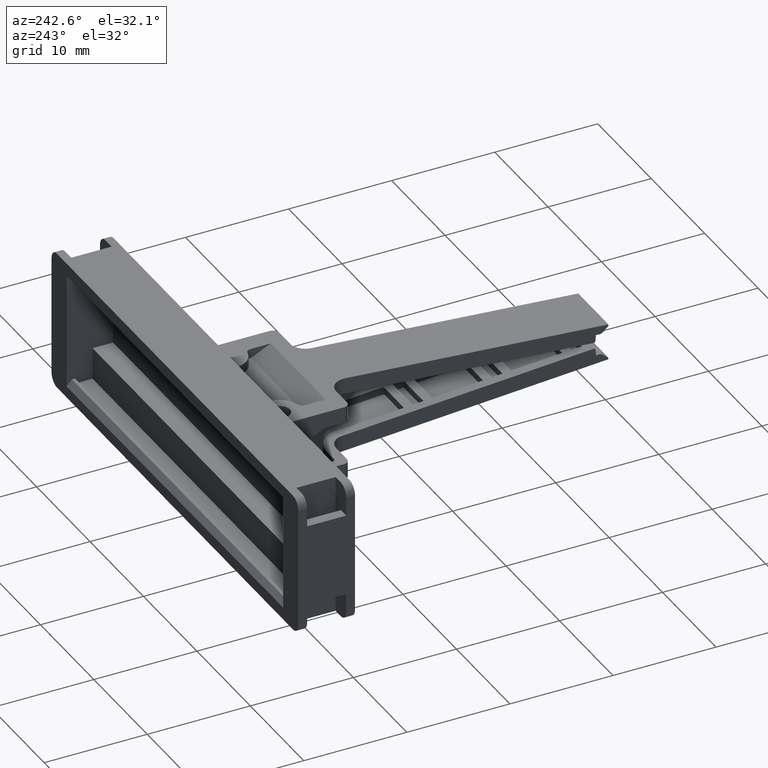
[diagram: clean part render]
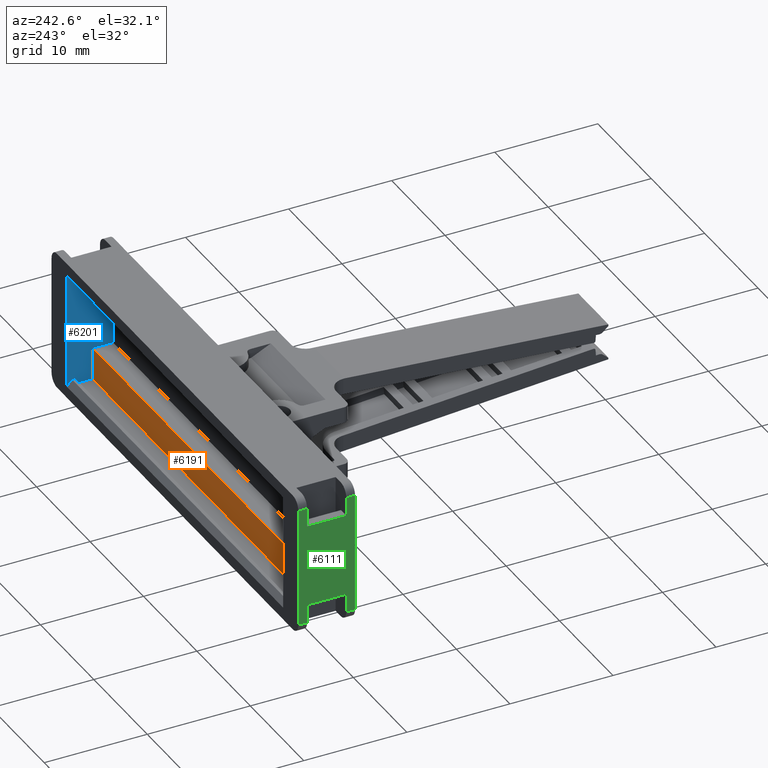
[diagram: same view with three faces highlighted in distinct colors, each labeled with its STEP entity id]
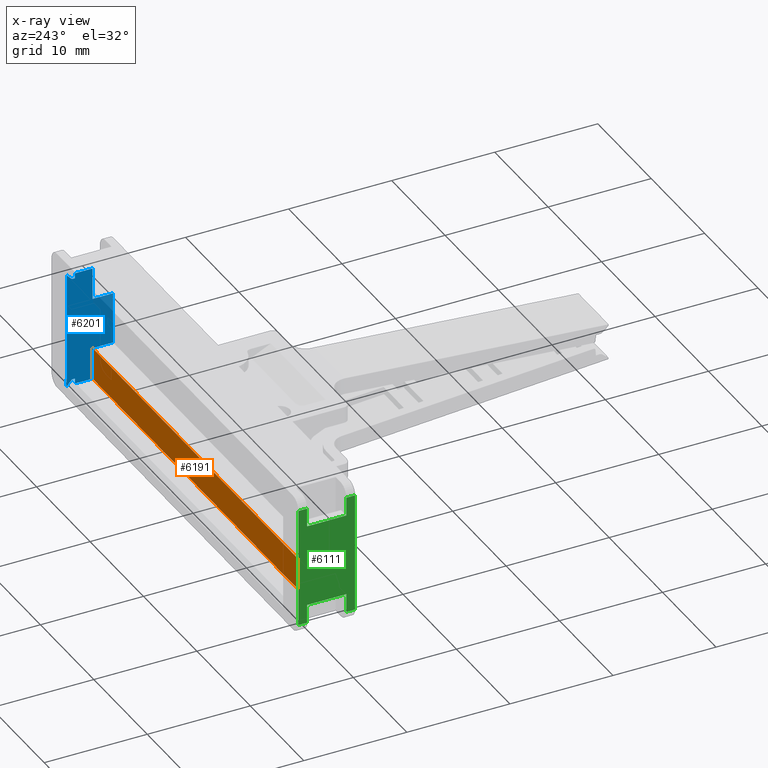
[diagram: x-ray of the same camera — body ghosted, the three highlighted faces saturated]
A machine part, auxiliary view with three faces highlighted in distinct colors.
The next image is the same camera in x-ray (body ghosted, the three faces saturated) — at least one of them is partly hidden behind the body in this view.
Their STEP definitions:

[orange] entity #6191 — the highlighted planar face has unit normal (0, 1, -0).
#557 = FACE_OUTER_BOUND ( 'NONE', #4956, .T. ) ;
#588 = PLANE ( 'NONE',  #7353 ) ;
#590 = CARTESIAN_POINT ( 'NONE',  ( -419.6897411092647300, 149.2340583950820900, 12.57606308538600900 ) ) ;
#603 = DIRECTION ( 'NONE',  ( 2.742953361444780200E-007, 0.9999999999999623600, -0.0000000000000000000 ) ) ;
#604 = DIRECTION ( 'NONE',  ( -0.9999999999999623600, 2.742953361444780200E-007, 0.0000000000000000000 ) ) ;
#1152 = CARTESIAN_POINT ( 'NONE',  ( -419.6897416578551100, 149.2340583950822600, 12.57606308538600900 ) ) ;
#1192 = CARTESIAN_POINT ( 'NONE',  ( -460.1897416578522100, 149.2340695040433300, 12.57606308538600900 ) ) ;
#2229 = CARTESIAN_POINT ( 'NONE',  ( -460.1897416578523200, 149.2340695040433300, 9.476063085386011100 ) ) ;
#2310 = CARTESIAN_POINT ( 'NONE',  ( -419.6897416578556200, 149.2340583950822600, 9.476063085386011100 ) ) ;
#3043 = DIRECTION ( 'NONE',  ( -0.0000000000000000000, -0.0000000000000000000, -1.000000000000000000 ) ) ;
#3049 = LINE ( 'NONE', #3057, #7735 ) ;
#3054 = DIRECTION ( 'NONE',  ( 0.9999999999999623600, -2.742953354163218600E-007, 0.0000000000000000000 ) ) ;
#3057 = CARTESIAN_POINT ( 'NONE',  ( -419.6897416578551700, 149.2340583950822600, 21.57606308538600700 ) ) ;
#3070 = LINE ( 'NONE', #3076, #7718 ) ;
#3076 = CARTESIAN_POINT ( 'NONE',  ( -460.1897416578522100, 149.2340695040433300, 12.57606308538600900 ) ) ;
#3108 = LINE ( 'NONE', #3126, #6973 ) ;
#3126 = CARTESIAN_POINT ( 'NONE',  ( -460.1897416578523200, 149.2340695040433300, 21.57606308538600700 ) ) ;
#3128 = DIRECTION ( 'NONE',  ( 0.0000000000000000000, 0.0000000000000000000, 1.000000000000000000 ) ) ;
#4956 = EDGE_LOOP ( 'NONE', ( #5460, #5270, #5526, #5444 ) ) ;
#5044 = CARTESIAN_POINT ( 'NONE',  ( -419.6897411092647300, 149.2340583950820900, 9.476063085386009300 ) ) ;
#5057 = DIRECTION ( 'NONE',  ( -0.9999999999999623600, 2.742953361444780200E-007, 0.0000000000000000000 ) ) ;
#5117 = LINE ( 'NONE', #5044, #7607 ) ;
#5270 = ORIENTED_EDGE ( 'NONE', *, *, #6593, .T. ) ;
#5444 = ORIENTED_EDGE ( 'NONE', *, *, #6608, .T. ) ;
#5460 = ORIENTED_EDGE ( 'NONE', *, *, #6590, .T. ) ;
#5526 = ORIENTED_EDGE ( 'NONE', *, *, #6455, .T. ) ;
#5875 = VERTEX_POINT ( 'NONE', #2229 ) ;
#5950 = VERTEX_POINT ( 'NONE', #2310 ) ;
#5987 = VERTEX_POINT ( 'NONE', #1192 ) ;
#6003 = VERTEX_POINT ( 'NONE', #1152 ) ;
#6191 = ADVANCED_FACE ( 'NONE', ( #557 ), #588, .T. ) ;
#6455 = EDGE_CURVE ( 'NONE', #5950, #5875, #5117, .T. ) ;
#6590 = EDGE_CURVE ( 'NONE', #5987, #6003, #3070, .T. ) ;
#6593 = EDGE_CURVE ( 'NONE', #6003, #5950, #3049, .T. ) ;
#6608 = EDGE_CURVE ( 'NONE', #5875, #5987, #3108, .T. ) ;
#6973 = VECTOR ( 'NONE', #3128, 1000.000000000000000 ) ;
#7353 = AXIS2_PLACEMENT_3D ( 'NONE', #590, #603, #604 ) ;
#7607 = VECTOR ( 'NONE', #5057, 1000.000000000000100 ) ;
#7718 = VECTOR ( 'NONE', #3054, 1000.000000000000100 ) ;
#7735 = VECTOR ( 'NONE', #3043, 1000.000000000000000 ) ;

[blue] entity #6201 — the highlighted planar face has unit normal (1, 0, -0).
#38 = CARTESIAN_POINT ( 'NONE',  ( -419.6897416595813900, 151.7340548927066700, 10.41417284747742900 ) ) ;
#625 = FACE_OUTER_BOUND ( 'NONE', #4955, .T. ) ;
#632 = PLANE ( 'NONE',  #7363 ) ;
#633 = DIRECTION ( 'NONE',  ( 1.000000000000000000, 4.966796887890610000E-013, -0.0000000000000000000 ) ) ;
#646 = DIRECTION ( 'NONE',  ( -4.966796887890610000E-013, 1.000000000000000000, 0.0000000000000000000 ) ) ;
#661 = CARTESIAN_POINT ( 'NONE',  ( -419.6897416578563000, 151.6340546778022300, 21.57606308538600700 ) ) ;
#1152 = CARTESIAN_POINT ( 'NONE',  ( -419.6897416578551100, 149.2340583950822600, 12.57606308538600900 ) ) ;
#1163 = CARTESIAN_POINT ( 'NONE',  ( -419.6897416578546000, 147.2340583906099600, 12.57606308538600500 ) ) ;
#1172 = CARTESIAN_POINT ( 'NONE',  ( -419.6897416578543100, 147.2340583870322100, 17.57606308538600700 ) ) ;
#1188 = CARTESIAN_POINT ( 'NONE',  ( -419.6897416584290600, 151.7340599909095400, 20.67606166276161200 ) ) ;
#1201 = CARTESIAN_POINT ( 'NONE',  ( -419.6897416578549400, 149.2340583950822600, 17.57606308538600700 ) ) ;
#2165 = CARTESIAN_POINT ( 'NONE',  ( -419.6897416578560200, 151.2340652587027100, 20.17606308537966700 ) ) ;
#2178 = CARTESIAN_POINT ( 'NONE',  ( -419.6897416578561300, 150.9340649173834400, 9.476063085386011100 ) ) ;
#2180 = CARTESIAN_POINT ( 'NONE',  ( -419.6897416555415800, 151.7638577032451200, 9.413707105230278300 ) ) ;
#2185 = CARTESIAN_POINT ( 'NONE',  ( -419.6897416578562500, 150.9340649173867100, 9.976063085385108700 ) ) ;
#2189 = CARTESIAN_POINT ( 'NONE',  ( -419.6897416578556800, 150.9340649173904900, 20.67606308538600500 ) ) ;
#2197 = CARTESIAN_POINT ( 'NONE',  ( -419.6897416578558500, 150.9340649173766700, 20.17606308538491800 ) ) ;
#2260 = CARTESIAN_POINT ( 'NONE',  ( -419.6897416572152800, 151.2340652587038200, 9.976063085386865500 ) ) ;
#2281 = CARTESIAN_POINT ( 'NONE',  ( -419.6897416578551100, 149.2340583950822600, 20.67606308538600500 ) ) ;
#2310 = CARTESIAN_POINT ( 'NONE',  ( -419.6897416578556200, 149.2340583950822600, 9.476063085386011100 ) ) ;
#2421 = ORIENTED_EDGE ( 'NONE', *, *, #6365, .T. ) ;
#2428 = ORIENTED_EDGE ( 'NONE', *, *, #6614, .F. ) ;
#2448 = ORIENTED_EDGE ( 'NONE', *, *, #6692, .F. ) ;
#2475 = ORIENTED_EDGE ( 'NONE', *, *, #6426, .T. ) ;
#2483 = ORIENTED_EDGE ( 'NONE', *, *, #6677, .F. ) ;
#2484 = ORIENTED_EDGE ( 'NONE', *, *, #6461, .T. ) ;
#2488 = ORIENTED_EDGE ( 'NONE', *, *, #6593, .F. ) ;
#2493 = ORIENTED_EDGE ( 'NONE', *, *, #6430, .T. ) ;
#2494 = ORIENTED_EDGE ( 'NONE', *, *, #6666, .F. ) ;
#2496 = ORIENTED_EDGE ( 'NONE', *, *, #6603, .F. ) ;
#2502 = ORIENTED_EDGE ( 'NONE', *, *, #6372, .T. ) ;
#2519 = ORIENTED_EDGE ( 'NONE', *, *, #6622, .F. ) ;
#2523 = ORIENTED_EDGE ( 'NONE', *, *, #6403, .F. ) ;
#2531 = ORIENTED_EDGE ( 'NONE', *, *, #6584, .F. ) ;
#2540 = ORIENTED_EDGE ( 'NONE', *, *, #6466, .T. ) ;
#3000 = LINE ( 'NONE', #3007, #7732 ) ;
#3007 = CARTESIAN_POINT ( 'NONE',  ( -419.6897416578541400, 147.2340583843488800, 21.57606308538600700 ) ) ;
#3009 = DIRECTION ( 'NONE',  ( -0.0000000000000000000, -0.0000000000000000000, -1.000000000000000000 ) ) ;
#3043 = DIRECTION ( 'NONE',  ( -0.0000000000000000000, -0.0000000000000000000, -1.000000000000000000 ) ) ;
#3049 = LINE ( 'NONE', #3057, #7735 ) ;
#3057 = CARTESIAN_POINT ( 'NONE',  ( -419.6897416578551700, 149.2340583950822600, 21.57606308538600700 ) ) ;
#3088 = LINE ( 'NONE', #3121, #6949 ) ;
#3091 = DIRECTION ( 'NONE',  ( 3.925261081698462900E-013, -0.7071040438082220000, -0.7071095185542760600 ) ) ;
#3096 = CARTESIAN_POINT ( 'NONE',  ( -419.6897416578551700, 149.2340583950822600, 21.57606308538600700 ) ) ;
#3113 = LINE ( 'NONE', #3096, #7690 ) ;
#3114 = DIRECTION ( 'NONE',  ( -0.0000000000000000000, -0.0000000000000000000, -1.000000000000000000 ) ) ;
#3121 = CARTESIAN_POINT ( 'NONE',  ( -419.6897416578563600, 151.7340595099788300, 20.67606120785361400 ) ) ;
#3155 = CARTESIAN_POINT ( 'NONE',  ( -419.6897416578563000, 151.6340546778022300, 12.57606308538600500 ) ) ;
#3158 = DIRECTION ( 'NONE',  ( -4.966796887890610000E-013, 1.000000000000000000, 0.0000000000000000000 ) ) ;
#3176 = LINE ( 'NONE', #3155, #6965 ) ;
#3351 = LINE ( 'NONE', #3352, #6957 ) ;
#3352 = CARTESIAN_POINT ( 'NONE',  ( -419.6897416613063600, 151.7340548927066700, 22.37606308538600400 ) ) ;
#3353 = DIRECTION ( 'NONE',  ( 0.0000000000000000000, 0.0000000000000000000, 1.000000000000000000 ) ) ;
#3411 = CARTESIAN_POINT ( 'NONE',  ( -419.6897416578563000, 151.6340546778022300, 17.57606308538600700 ) ) ;
#3430 = DIRECTION ( 'NONE',  ( 4.966796887890610000E-013, -1.000000000000000000, -0.0000000000000000000 ) ) ;
#3431 = LINE ( 'NONE', #3411, #6958 ) ;
#3463 = CARTESIAN_POINT ( 'NONE',  ( -419.6897416595813900, 151.7340548927066700, 10.41417284747742900 ) ) ;
#3513 = CARTESIAN_POINT ( 'NONE',  ( -419.6897416584290600, 151.7340599909095400, 20.67606166276161200 ) ) ;
#3525 = CARTESIAN_POINT ( 'NONE',  ( -419.6897416613063600, 151.7340548927066700, 17.25543175439488800 ) ) ;
#3545 = CARTESIAN_POINT ( 'NONE',  ( -419.6897416613063600, 151.7340548927066700, 13.83480230093615800 ) ) ;
#4092 = B_SPLINE_CURVE_WITH_KNOTS ( 'NONE', 3,
 ( #4607, #4621, #4789, #4734 ),
 .UNSPECIFIED., .F., .F.,
 ( 4, 4 ),
 ( 0.0000000000000000000, 1.000000000000000000 ),
 .UNSPECIFIED. ) ;
#4101 = B_SPLINE_CURVE_WITH_KNOTS ( 'NONE', 3,
 ( #3463, #3545, #3525, #3513 ),
 .UNSPECIFIED., .F., .F.,
 ( 4, 4 ),
 ( 0.08981549320884404900, 1.000000000000000000 ),
 .UNSPECIFIED. ) ;
#4515 = CARTESIAN_POINT ( 'NONE',  ( -419.6897416578563000, 151.2340652587133400, 9.976063085386011100 ) ) ;
#4526 = DIRECTION ( 'NONE',  ( -0.0000000000000000000, -1.000000000000000000, -0.0000000000000000000 ) ) ;
#4536 = LINE ( 'NONE', #4515, #7526 ) ;
#4568 = CARTESIAN_POINT ( 'NONE',  ( -419.6897416578556800, 150.9340649173929300, 20.17606308538600500 ) ) ;
#4571 = DIRECTION ( 'NONE',  ( -0.0000000000000000000, -0.0000000000000000000, -1.000000000000000000 ) ) ;
#4587 = LINE ( 'NONE', #4568, #7561 ) ;
#4607 = CARTESIAN_POINT ( 'NONE',  ( -419.6897416572152800, 151.2340652587038200, 9.976063085386865500 ) ) ;
#4621 = CARTESIAN_POINT ( 'NONE',  ( -419.6897416561471300, 151.4165505771551600, 9.793577766942604500 ) ) ;
#4734 = CARTESIAN_POINT ( 'NONE',  ( -419.6897416555415800, 151.7638577032451200, 9.413707105230278300 ) ) ;
#4789 = CARTESIAN_POINT ( 'NONE',  ( -419.6897416561471300, 151.5990358956020400, 9.611092448495771400 ) ) ;
#4908 = LINE ( 'NONE', #4922, #7616 ) ;
#4922 = CARTESIAN_POINT ( 'NONE',  ( -419.6897416578561300, 150.9340649173944400, 9.476063085386011100 ) ) ;
#4925 = DIRECTION ( 'NONE',  ( -0.0000000000000000000, -1.000000000000000000, -0.0000000000000000000 ) ) ;
#4955 = EDGE_LOOP ( 'NONE', ( #2493, #2475, #2488, #2519, #2531, #2483, #2496, #2540, #2502, #2484, #2428, #2448, #2494, #2523, #2421 ) ) ;
#4967 = CARTESIAN_POINT ( 'NONE',  ( -419.6897416578561900, 150.9340649173929300, 9.976063085386011100 ) ) ;
#4980 = LINE ( 'NONE', #4967, #7578 ) ;
#5006 = DIRECTION ( 'NONE',  ( -0.0000000000000000000, -0.0000000000000000000, -1.000000000000000000 ) ) ;
#5172 = CARTESIAN_POINT ( 'NONE',  ( -419.6897416578559000, 151.2340652587133400, 20.17606308538600500 ) ) ;
#5186 = LINE ( 'NONE', #5214, #7625 ) ;
#5212 = LINE ( 'NONE', #5172, #7613 ) ;
#5214 = CARTESIAN_POINT ( 'NONE',  ( -419.6897416578551100, 150.9340649173944400, 20.67606308538600500 ) ) ;
#5220 = DIRECTION ( 'NONE',  ( -0.0000000000000000000, 1.000000000000000000, 0.0000000000000000000 ) ) ;
#5233 = DIRECTION ( 'NONE',  ( -0.0000000000000000000, 1.000000000000000000, 0.0000000000000000000 ) ) ;
#5799 = VERTEX_POINT ( 'NONE', #2178 ) ;
#5804 = VERTEX_POINT ( 'NONE', #2180 ) ;
#5818 = VERTEX_POINT ( 'NONE', #2197 ) ;
#5837 = VERTEX_POINT ( 'NONE', #2185 ) ;
#5842 = VERTEX_POINT ( 'NONE', #2189 ) ;
#5847 = VERTEX_POINT ( 'NONE', #2165 ) ;
#5879 = VERTEX_POINT ( 'NONE', #2260 ) ;
#5888 = VERTEX_POINT ( 'NONE', #2281 ) ;
#5950 = VERTEX_POINT ( 'NONE', #2310 ) ;
#6002 = VERTEX_POINT ( 'NONE', #1163 ) ;
#6003 = VERTEX_POINT ( 'NONE', #1152 ) ;
#6020 = VERTEX_POINT ( 'NONE', #1188 ) ;
#6027 = VERTEX_POINT ( 'NONE', #1172 ) ;
#6031 = VERTEX_POINT ( 'NONE', #1201 ) ;
#6074 = VERTEX_POINT ( 'NONE', #38 ) ;
#6201 = ADVANCED_FACE ( 'NONE', ( #625 ), #632, .F. ) ;
#6365 = EDGE_CURVE ( 'NONE', #5879, #5837, #4536, .T. ) ;
#6372 = EDGE_CURVE ( 'NONE', #5842, #5818, #4587, .T. ) ;
#6403 = EDGE_CURVE ( 'NONE', #5879, #5804, #4092, .T. ) ;
#6426 = EDGE_CURVE ( 'NONE', #5799, #5950, #4908, .T. ) ;
#6430 = EDGE_CURVE ( 'NONE', #5837, #5799, #4980, .T. ) ;
#6461 = EDGE_CURVE ( 'NONE', #5818, #5847, #5212, .T. ) ;
#6466 = EDGE_CURVE ( 'NONE', #5888, #5842, #5186, .T. ) ;
#6584 = EDGE_CURVE ( 'NONE', #6027, #6002, #3000, .T. ) ;
#6593 = EDGE_CURVE ( 'NONE', #6003, #5950, #3049, .T. ) ;
#6603 = EDGE_CURVE ( 'NONE', #5888, #6031, #3113, .T. ) ;
#6614 = EDGE_CURVE ( 'NONE', #6020, #5847, #3088, .T. ) ;
#6622 = EDGE_CURVE ( 'NONE', #6002, #6003, #3176, .T. ) ;
#6666 = EDGE_CURVE ( 'NONE', #5804, #6074, #3351, .T. ) ;
#6677 = EDGE_CURVE ( 'NONE', #6031, #6027, #3431, .T. ) ;
#6692 = EDGE_CURVE ( 'NONE', #6074, #6020, #4101, .T. ) ;
#6949 = VECTOR ( 'NONE', #3091, 1000.000000000000000 ) ;
#6957 = VECTOR ( 'NONE', #3353, 1000.000000000000000 ) ;
#6958 = VECTOR ( 'NONE', #3430, 1000.000000000000000 ) ;
#6965 = VECTOR ( 'NONE', #3158, 1000.000000000000000 ) ;
#7363 = AXIS2_PLACEMENT_3D ( 'NONE', #661, #633, #646 ) ;
#7526 = VECTOR ( 'NONE', #4526, 1000.000000000000000 ) ;
#7561 = VECTOR ( 'NONE', #4571, 1000.000000000000000 ) ;
#7578 = VECTOR ( 'NONE', #5006, 1000.000000000000000 ) ;
#7613 = VECTOR ( 'NONE', #5233, 1000.000000000000000 ) ;
#7616 = VECTOR ( 'NONE', #4925, 1000.000000000000000 ) ;
#7625 = VECTOR ( 'NONE', #5220, 1000.000000000000000 ) ;
#7690 = VECTOR ( 'NONE', #3114, 1000.000000000000000 ) ;
#7732 = VECTOR ( 'NONE', #3009, 1000.000000000000000 ) ;
#7735 = VECTOR ( 'NONE', #3043, 1000.000000000000000 ) ;

[green] entity #6111 — the highlighted planar face has unit normal (-1, 0, 0).
#60 = CARTESIAN_POINT ( 'NONE',  ( -463.0397420750197700, 147.0840695314734900, 11.07606308538597900 ) ) ;
#127 = CARTESIAN_POINT ( 'NONE',  ( -463.0397416578523500, 148.7340695314733800, 22.37606308538600400 ) ) ;
#137 = DIRECTION ( 'NONE',  ( -2.528287611076543100E-007, -0.9999999999999680300, 0.0000000000000000000 ) ) ;
#145 = FACE_OUTER_BOUND ( 'NONE', #5203, .T. ) ;
#153 = DIRECTION ( 'NONE',  ( -0.9999999999999680300, 2.528287611076543100E-007, 0.0000000000000000000 ) ) ;
#168 = PLANE ( 'NONE',  #7293 ) ;
#1190 = CARTESIAN_POINT ( 'NONE',  ( -463.0397411142712900, 150.8840660698446400, 11.07606308538600000 ) ) ;
#1455 = CARTESIAN_POINT ( 'NONE',  ( -463.0397411142713500, 150.8840661040818800, 9.276063085385994000 ) ) ;
#1491 = ORIENTED_EDGE ( 'NONE', *, *, #6832, .T. ) ;
#1492 = ORIENTED_EDGE ( 'NONE', *, *, #6800, .T. ) ;
#1499 = ORIENTED_EDGE ( 'NONE', *, *, #6919, .F. ) ;
#1503 = ORIENTED_EDGE ( 'NONE', *, *, #6790, .T. ) ;
#1508 = ORIENTED_EDGE ( 'NONE', *, *, #6835, .T. ) ;
#1533 = ORIENTED_EDGE ( 'NONE', *, *, #6798, .T. ) ;
#1550 = ORIENTED_EDGE ( 'NONE', *, *, #6813, .T. ) ;
#1562 = ORIENTED_EDGE ( 'NONE', *, *, #6914, .F. ) ;
#1578 = ORIENTED_EDGE ( 'NONE', *, *, #6776, .T. ) ;
#1579 = ORIENTED_EDGE ( 'NONE', *, *, #6794, .T. ) ;
#1585 = ORIENTED_EDGE ( 'NONE', *, *, #6795, .T. ) ;
#1648 = ORIENTED_EDGE ( 'NONE', *, *, #6920, .T. ) ;
#2039 = CARTESIAN_POINT ( 'NONE',  ( -463.0397411142712900, 150.8840659539648100, 19.07606308538632700 ) ) ;
#2059 = CARTESIAN_POINT ( 'NONE',  ( -463.0397420750197200, 147.0840694998699100, 9.276063085386004700 ) ) ;
#2082 = CARTESIAN_POINT ( 'NONE',  ( -463.0397420750197700, 147.0840694214461200, 19.07606308538632700 ) ) ;
#2098 = CARTESIAN_POINT ( 'NONE',  ( -463.0397420750198300, 147.0840694050589300, 20.87606308538600800 ) ) ;
#2108 = CARTESIAN_POINT ( 'NONE',  ( -463.0397411142713500, 150.8840659539648100, 20.87606308538600800 ) ) ;
#2110 = CARTESIAN_POINT ( 'NONE',  ( -463.0397422109152800, 146.2340695314734900, 9.276063085386008200 ) ) ;
#2119 = CARTESIAN_POINT ( 'NONE',  ( -463.0397408993670200, 151.7340658528331100, 20.87606308538600800 ) ) ;
#2121 = CARTESIAN_POINT ( 'NONE',  ( -463.0397422109152800, 146.2340695314734900, 20.87606308538600800 ) ) ;
#2130 = CARTESIAN_POINT ( 'NONE',  ( -463.0397408993670200, 151.7340658528331100, 9.276063085385997600 ) ) ;
#2609 = DIRECTION ( 'NONE',  ( -0.0000000000000000000, -0.0000000000000000000, -1.000000000000000000 ) ) ;
#2619 = CARTESIAN_POINT ( 'NONE',  ( -463.0397416578523500, 148.7340695314733800, 20.87606308538600800 ) ) ;
#2621 = CARTESIAN_POINT ( 'NONE',  ( -463.0397421319063400, 146.2340695314734900, 22.37606308538600400 ) ) ;
#2626 = LINE ( 'NONE', #2621, #7210 ) ;
#2632 = DIRECTION ( 'NONE',  ( 2.528287611076544700E-007, 0.9999999999999680300, 0.0000000000000000000 ) ) ;
#2633 = DIRECTION ( 'NONE',  ( 2.528287611076543100E-007, 0.9999999999999680300, -0.0000000000000000000 ) ) ;
#2645 = LINE ( 'NONE', #2619, #7229 ) ;
#2649 = CARTESIAN_POINT ( 'NONE',  ( -463.0397416578522900, 148.7340695314733800, 9.276063085386008200 ) ) ;
#2651 = LINE ( 'NONE', #2649, #7196 ) ;
#3816 = CARTESIAN_POINT ( 'NONE',  ( -463.0397408993670200, 151.7340658528331100, 22.37606308538600400 ) ) ;
#3832 = LINE ( 'NONE', #3816, #7085 ) ;
#3835 = DIRECTION ( 'NONE',  ( -0.0000000000000000000, -0.0000000000000000000, -1.000000000000000000 ) ) ;
#3852 = DIRECTION ( 'NONE',  ( 0.0000000000000000000, 0.0000000000000000000, 1.000000000000000000 ) ) ;
#3854 = LINE ( 'NONE', #3902, #7107 ) ;
#3872 = DIRECTION ( 'NONE',  ( -2.528287611076543100E-007, -0.9999999999999680300, 0.0000000000000000000 ) ) ;
#3888 = LINE ( 'NONE', #3893, #7099 ) ;
#3892 = LINE ( 'NONE', #3895, #7103 ) ;
#3893 = CARTESIAN_POINT ( 'NONE',  ( -463.0397411142713500, 150.8840661277845600, 22.37606308538600400 ) ) ;
#3895 = CARTESIAN_POINT ( 'NONE',  ( -463.0397416578523500, 148.7340695314733800, 11.07606308538600000 ) ) ;
#3902 = CARTESIAN_POINT ( 'NONE',  ( -463.0397420750197700, 147.0840694366626500, 22.37606308538600400 ) ) ;
#3903 = DIRECTION ( 'NONE',  ( 0.0000000000000000000, 0.0000000000000000000, 1.000000000000000000 ) ) ;
#3904 = CARTESIAN_POINT ( 'NONE',  ( -463.0397411142713500, 150.8840659539648100, 22.37606308538600400 ) ) ;
#3906 = CARTESIAN_POINT ( 'NONE',  ( -463.0397416578523500, 148.7340695314733800, 20.87606308538600800 ) ) ;
#3911 = LINE ( 'NONE', #3904, #7098 ) ;
#3921 = DIRECTION ( 'NONE',  ( -0.0000000000000000000, -0.0000000000000000000, -1.000000000000000000 ) ) ;
#3936 = DIRECTION ( 'NONE',  ( 2.528287611076543100E-007, 0.9999999999999680300, -0.0000000000000000000 ) ) ;
#3943 = LINE ( 'NONE', #3906, #7114 ) ;
#3954 = CARTESIAN_POINT ( 'NONE',  ( -463.0397416578523500, 148.7340695314733800, 9.276063085385990400 ) ) ;
#3979 = DIRECTION ( 'NONE',  ( -2.528287611076543100E-007, -0.9999999999999680300, 0.0000000000000000000 ) ) ;
#3988 = LINE ( 'NONE', #3954, #7123 ) ;
#3999 = CARTESIAN_POINT ( 'NONE',  ( -463.0397420750197700, 147.0840695314734900, 22.37606308538600400 ) ) ;
#4020 = DIRECTION ( 'NONE',  ( 2.528287611076543100E-007, 0.9999999999999680300, -0.0000000000000000000 ) ) ;
#4028 = LINE ( 'NONE', #4038, #7141 ) ;
#4030 = LINE ( 'NONE', #3999, #7144 ) ;
#4031 = DIRECTION ( 'NONE',  ( -0.0000000000000000000, -0.0000000000000000000, -1.000000000000000000 ) ) ;
#4038 = CARTESIAN_POINT ( 'NONE',  ( -463.0397416578523500, 148.7340695314733800, 19.07606308538632700 ) ) ;
#4609 = VERTEX_POINT ( 'NONE', #2082 ) ;
#4617 = VERTEX_POINT ( 'NONE', #1455 ) ;
#4637 = VERTEX_POINT ( 'NONE', #2059 ) ;
#4703 = VERTEX_POINT ( 'NONE', #2039 ) ;
#4710 = VERTEX_POINT ( 'NONE', #2108 ) ;
#4743 = VERTEX_POINT ( 'NONE', #2121 ) ;
#4751 = VERTEX_POINT ( 'NONE', #2119 ) ;
#4770 = VERTEX_POINT ( 'NONE', #2110 ) ;
#4796 = VERTEX_POINT ( 'NONE', #2098 ) ;
#4812 = VERTEX_POINT ( 'NONE', #2130 ) ;
#5203 = EDGE_LOOP ( 'NONE', ( #1585, #1491, #1533, #1492, #1578, #1550, #1579, #1503, #1508, #1499, #1562, #1648 ) ) ;
#6042 = VERTEX_POINT ( 'NONE', #1190 ) ;
#6050 = VERTEX_POINT ( 'NONE', #60 ) ;
#6111 = ADVANCED_FACE ( 'NONE', ( #145 ), #168, .T. ) ;
#6776 = EDGE_CURVE ( 'NONE', #4751, #4812, #3832, .T. ) ;
#6790 = EDGE_CURVE ( 'NONE', #6042, #6050, #3892, .T. ) ;
#6794 = EDGE_CURVE ( 'NONE', #4617, #6042, #3888, .T. ) ;
#6795 = EDGE_CURVE ( 'NONE', #4796, #4609, #3854, .T. ) ;
#6798 = EDGE_CURVE ( 'NONE', #4703, #4710, #3911, .T. ) ;
#6800 = EDGE_CURVE ( 'NONE', #4710, #4751, #3943, .T. ) ;
#6813 = EDGE_CURVE ( 'NONE', #4812, #4617, #3988, .T. ) ;
#6832 = EDGE_CURVE ( 'NONE', #4609, #4703, #4028, .T. ) ;
#6835 = EDGE_CURVE ( 'NONE', #6050, #4637, #4030, .T. ) ;
#6914 = EDGE_CURVE ( 'NONE', #4743, #4770, #2626, .T. ) ;
#6919 = EDGE_CURVE ( 'NONE', #4770, #4637, #2651, .T. ) ;
#6920 = EDGE_CURVE ( 'NONE', #4743, #4796, #2645, .T. ) ;
#7085 = VECTOR ( 'NONE', #3835, 1000.000000000000000 ) ;
#7098 = VECTOR ( 'NONE', #3903, 1000.000000000000000 ) ;
#7099 = VECTOR ( 'NONE', #3852, 1000.000000000000000 ) ;
#7103 = VECTOR ( 'NONE', #3872, 1000.000000000000100 ) ;
#7107 = VECTOR ( 'NONE', #3921, 1000.000000000000000 ) ;
#7114 = VECTOR ( 'NONE', #3936, 1000.000000000000100 ) ;
#7123 = VECTOR ( 'NONE', #3979, 1000.000000000000100 ) ;
#7141 = VECTOR ( 'NONE', #4020, 1000.000000000000100 ) ;
#7144 = VECTOR ( 'NONE', #4031, 1000.000000000000000 ) ;
#7196 = VECTOR ( 'NONE', #2632, 1000.000000000000000 ) ;
#7210 = VECTOR ( 'NONE', #2609, 1000.000000000000000 ) ;
#7229 = VECTOR ( 'NONE', #2633, 1000.000000000000100 ) ;
#7293 = AXIS2_PLACEMENT_3D ( 'NONE', #127, #153, #137 ) ;